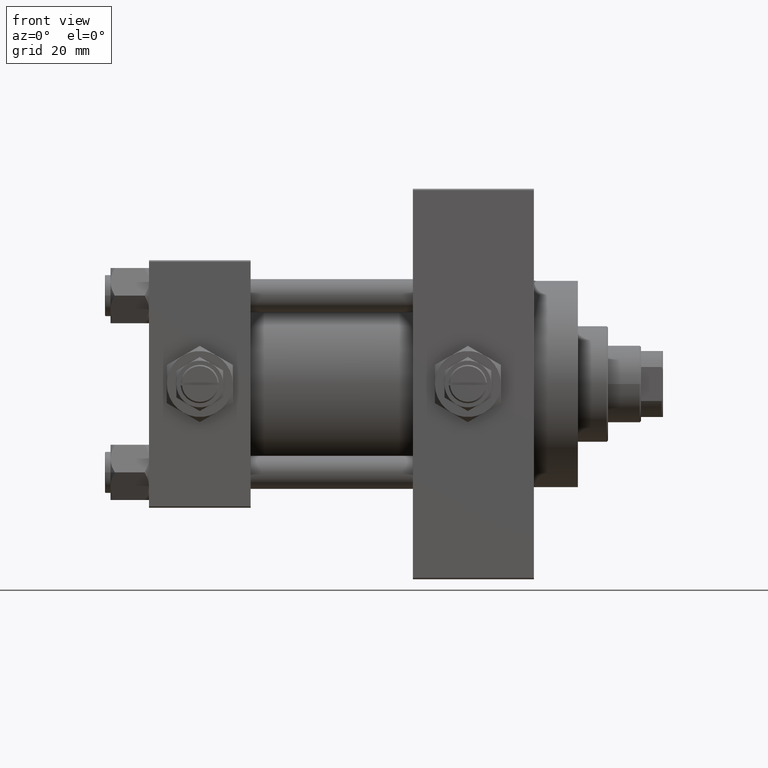
[diagram: clean part render]
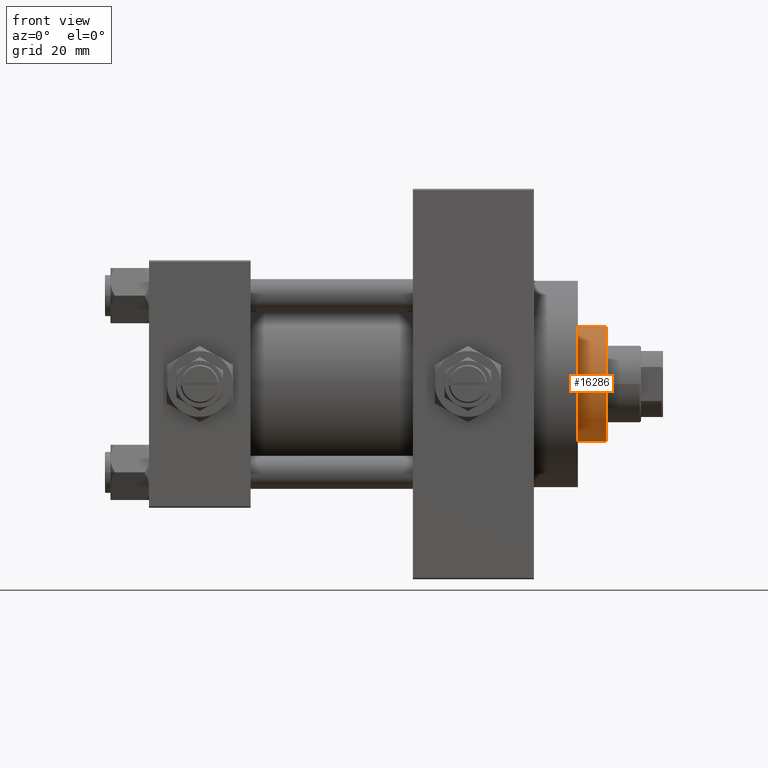
[diagram: same view with one face highlighted and labeled with its STEP entity id]
A machine part, front view. The second image highlights one B-rep face of the part: STEP entity #16286.
In plain terms, the highlighted cylindrical surface (partial cylindrical patch) has radius 21 mm, axis along (-1, 0, 0).
Its self-contained STEP definition (entity closure, byte-faithful):
#209 = ORIENTED_EDGE ( 'NONE', *, *, #3285, .T. ) ;
#1286 = DIRECTION ( 'NONE',  ( -1.000000000000000000, 0.000000000000000000, 0.000000000000000000 ) ) ;
#1491 = CARTESIAN_POINT ( 'NONE',  ( 0.000000000000000000, 0.000000000000000000, 43.25999999999999801 ) ) ;
#1954 = CARTESIAN_POINT ( 'NONE',  ( 21.00000000000000000, 2.571758278209441661E-15, 43.25999999999999801 ) ) ;
#2167 = DIRECTION ( 'NONE',  ( -0.000000000000000000, -0.000000000000000000, -1.000000000000000000 ) ) ;
#2278 = DIRECTION ( 'NONE',  ( -0.000000000000000000, -0.000000000000000000, -1.000000000000000000 ) ) ;
#2582 = VERTEX_POINT ( 'NONE', #22578 ) ;
#2638 = AXIS2_PLACEMENT_3D ( 'NONE', #6241, #14240, #17742 ) ;
#3285 = EDGE_CURVE ( 'NONE', #2582, #30889, #36414, .T. ) ;
#4836 = CIRCLE ( 'NONE', #20000, 21.00000000000000000 ) ;
#5112 = ORIENTED_EDGE ( 'NONE', *, *, #5872, .T. ) ;
#5872 = EDGE_CURVE ( 'NONE', #30543, #2582, #32175, .T. ) ;
#6241 = CARTESIAN_POINT ( 'NONE',  ( 0.000000000000000000, 0.000000000000000000, 53.76000000000001933 ) ) ;
#11164 = EDGE_CURVE ( 'NONE', #30543, #47034, #28032, .T. ) ;
#11559 = CARTESIAN_POINT ( 'NONE',  ( 0.000000000000000000, 0.000000000000000000, 54.26000000000000512 ) ) ;
#14240 = DIRECTION ( 'NONE',  ( 0.000000000000000000, 0.000000000000000000, -1.000000000000000000 ) ) ;
#15357 = VECTOR ( 'NONE', #2167, 1000.000000000000000 ) ;
#15810 = DIRECTION ( 'NONE',  ( -0.000000000000000000, -0.000000000000000000, -1.000000000000000000 ) ) ;
#16286 = ADVANCED_FACE ( 'NONE', ( #27287 ), #38323, .T. ) ;
#16544 = CARTESIAN_POINT ( 'NONE',  ( -21.00000000000000000, 0.000000000000000000, 53.76000000000001933 ) ) ;
#16750 = DIRECTION ( 'NONE',  ( 0.000000000000000000, 0.000000000000000000, 1.000000000000000000 ) ) ;
#17534 = CARTESIAN_POINT ( 'NONE',  ( -21.00000000000000000, 0.000000000000000000, 54.26000000000000512 ) ) ;
#17742 = DIRECTION ( 'NONE',  ( 1.000000000000000000, 0.000000000000000000, 0.000000000000000000 ) ) ;
#20000 = AXIS2_PLACEMENT_3D ( 'NONE', #1491, #16750, #31978 ) ;
#22578 = CARTESIAN_POINT ( 'NONE',  ( 21.00000000000000000, 2.571758278209441661E-15, 53.76000000000001933 ) ) ;
#25959 = VECTOR ( 'NONE', #2278, 1000.000000000000000 ) ;
#26490 = ORIENTED_EDGE ( 'NONE', *, *, #36064, .T. ) ;
#27287 = FACE_OUTER_BOUND ( 'NONE', #39728, .T. ) ;
#28032 = LINE ( 'NONE', #17534, #25959 ) ;
#28193 = AXIS2_PLACEMENT_3D ( 'NONE', #11559, #15810, #1286 ) ;
#30543 = VERTEX_POINT ( 'NONE', #16544 ) ;
#30889 = VERTEX_POINT ( 'NONE', #1954 ) ;
#31978 = DIRECTION ( 'NONE',  ( 1.000000000000000000, 0.000000000000000000, 0.000000000000000000 ) ) ;
#32175 = CIRCLE ( 'NONE', #2638, 21.00000000000000000 ) ;
#36064 = EDGE_CURVE ( 'NONE', #30889, #47034, #4836, .T. ) ;
#36414 = LINE ( 'NONE', #40176, #15357 ) ;
#38323 = CYLINDRICAL_SURFACE ( 'NONE', #28193, 21.00000000000000000 ) ;
#39728 = EDGE_LOOP ( 'NONE', ( #5112, #209, #26490, #43805 ) ) ;
#40176 = CARTESIAN_POINT ( 'NONE',  ( 21.00000000000000000, 2.571758278209441661E-15, 54.26000000000000512 ) ) ;
#40666 = CARTESIAN_POINT ( 'NONE',  ( -21.00000000000000000, 0.000000000000000000, 43.25999999999999801 ) ) ;
#43805 = ORIENTED_EDGE ( 'NONE', *, *, #11164, .F. ) ;
#47034 = VERTEX_POINT ( 'NONE', #40666 ) ;